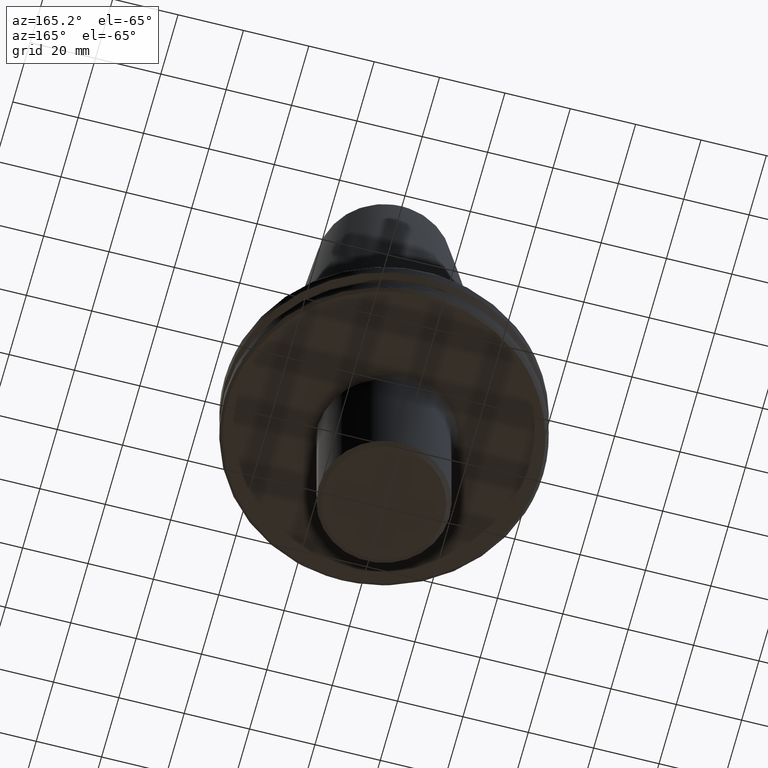
[diagram: clean part render]
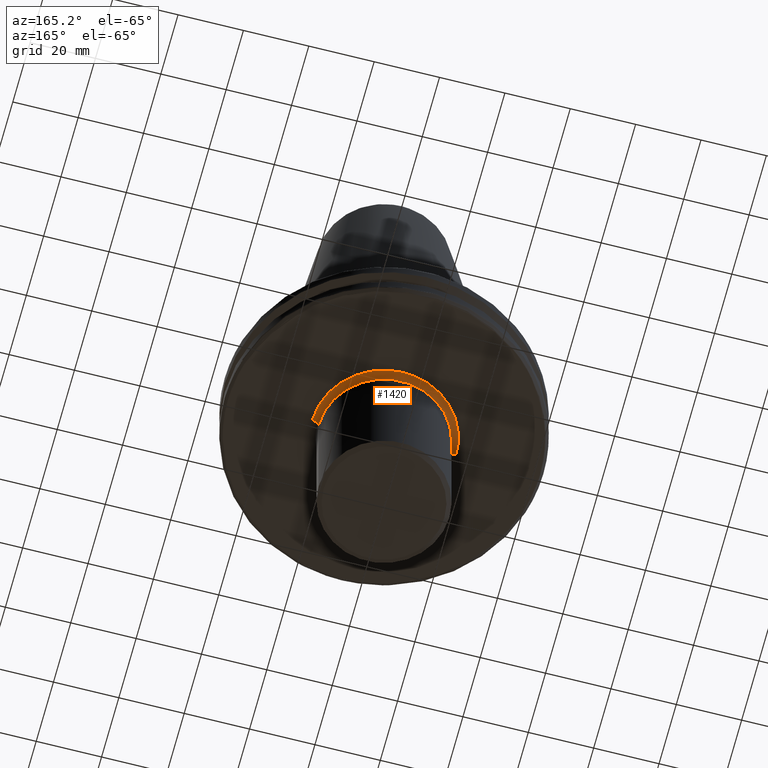
[diagram: same view with one face highlighted and labeled with its STEP entity id]
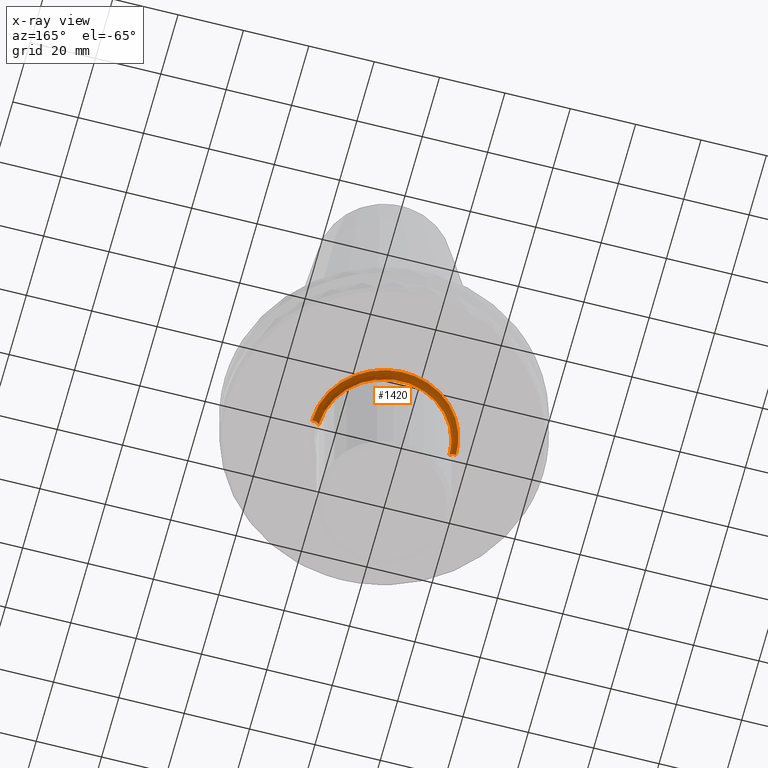
[diagram: x-ray of the same camera — body ghosted, the highlighted face saturated]
A machine part, auxiliary view. The second image highlights one B-rep face of the part: STEP entity #1420.
The next image is the same camera in x-ray: the body ghosted, the highlighted face saturated — about 0% of this face is hidden behind the body in this view.
In plain terms, the highlighted face is a freeform B-spline surface patch.
Its self-contained STEP definition (entity closure, byte-faithful):
#9 = CARTESIAN_POINT ( 'NONE',  ( -19.99999999999999600, 0.0000000000000000000, -19.92842712474619700 ) ) ;
#13 = CARTESIAN_POINT ( 'NONE',  ( 22.00000000000000000, 2.694222958124176800E-015, -19.10000000000000500 ) ) ;
#63 = CARTESIAN_POINT ( 'NONE',  ( -3.961824609639739600, 21.64034092733157200, -19.10000000000000100 ) ) ;
#77 = CARTESIAN_POINT ( 'NONE',  ( -8.789175858641266700, 20.18176426588434000, -19.10000000000000500 ) ) ;
#85 = CARTESIAN_POINT ( 'NONE',  ( -20.38625831591178900, 8.270596387113872800, -19.10000000000000500 ) ) ;
#96 = CARTESIAN_POINT ( 'NONE',  ( -21.60385400619547300, 4.156561715439580400, -19.10000000000000900 ) ) ;
#186 = CARTESIAN_POINT ( 'NONE',  ( 20.52036344144912400, 7.932009045223265000, -19.10000000000000100 ) ) ;
#196 = CARTESIAN_POINT ( 'NONE',  ( 14.17717719788480400, 16.85304434527245800, -19.10000000000000500 ) ) ;
#205 = CARTESIAN_POINT ( 'NONE',  ( 8.139535032522431400, 20.43893125800260100, -19.09999999999999800 ) ) ;
#216 = CARTESIAN_POINT ( 'NONE',  ( -1.677514054490996100, 21.95411813887724900, -19.10000000000000100 ) ) ;
#262 = CARTESIAN_POINT ( 'NONE',  ( 19.99999999999999300, 39.99999999999998600, -19.92842712474619700 ) ) ;
#309 = CARTESIAN_POINT ( 'NONE',  ( -8.054890344843698800, 20.47244127071653000, -19.10000000000000100 ) ) ;
#311 = CARTESIAN_POINT ( 'NONE',  ( 21.95408976314558900, 1.677667413967471000, -19.10000000000000900 ) ) ;
#318 = CARTESIAN_POINT ( 'NONE',  ( -14.48263358429819200, 16.63001222812161500, -19.10000000000000500 ) ) ;
#333 = CARTESIAN_POINT ( 'NONE',  ( -19.94720436764442100, 9.292882531663401800, -19.10000000000000900 ) ) ;
#349 = CARTESIAN_POINT ( 'NONE',  ( -21.62889225209343300, 4.023858802857255900, -19.10000000000000500 ) ) ;
#438 = CARTESIAN_POINT ( 'NONE',  ( 20.47244127071637400, 8.054890344843716600, -19.10000000000000100 ) ) ;
#447 = CARTESIAN_POINT ( 'NONE',  ( 12.58948349906860800, 18.04357110902726500, -19.10000000000000100 ) ) ;
#462 = CARTESIAN_POINT ( 'NONE',  ( 6.425581732685285100, 21.06203278898110300, -19.10000000000000500 ) ) ;
#473 = CARTESIAN_POINT ( 'NONE',  ( -3.423553767306822100, 21.73315916266629000, -19.10000000000000500 ) ) ;
#514 = CARTESIAN_POINT ( 'NONE',  ( -19.99999999999999600, 0.0000000000000000000, -21.10000000000000900 ) ) ;
#564 = CARTESIAN_POINT ( 'NONE',  ( -11.49024314156320200, 18.76264944326169700, -19.10000000000000500 ) ) ;
#578 = CARTESIAN_POINT ( 'NONE',  ( -13.30955040852072600, 17.58303452887182800, -19.10000000000000100 ) ) ;
#585 = CARTESIAN_POINT ( 'NONE',  ( -20.33376319355172900, 8.399625677568190300, -19.10000000000000100 ) ) ;
#592 = CARTESIAN_POINT ( 'NONE',  ( -21.87757270172153700, 2.680201566502885300, -19.10000000000000500 ) ) ;
#640 = CARTESIAN_POINT ( 'NONE',  ( 21.65908062398337800, 3.858408933056433700, -19.10000000000000500 ) ) ;
#687 = CARTESIAN_POINT ( 'NONE',  ( 19.72140032570168700, 9.800061415364796200, -19.10000000000000500 ) ) ;
#700 = CARTESIAN_POINT ( 'NONE',  ( 12.19716485783916800, 18.30951292798670600, -19.10000000000000900 ) ) ;
#711 = CARTESIAN_POINT ( 'NONE',  ( 4.615105481633576400, 21.51181872265524600, -19.10000000000000500 ) ) ;
#722 = CARTESIAN_POINT ( 'NONE',  ( -3.858390362182326300, 21.65908406010714800, -19.10000000000000900 ) ) ;
#766 = CARTESIAN_POINT ( 'NONE',  ( 19.99999999999999300, 39.99999999999998600, -21.10000000000000900 ) ) ;
#818 = CARTESIAN_POINT ( 'NONE',  ( -8.015101768288545300, 20.48804770931754900, -19.10000000000000100 ) ) ;
#828 = CARTESIAN_POINT ( 'NONE',  ( -16.09320698700696500, 15.01951766509526100, -19.10000000000000100 ) ) ;
#841 = CARTESIAN_POINT ( 'NONE',  ( -20.42099529586085900, 8.184441510769023200, -19.10000000000000500 ) ) ;
#941 = CARTESIAN_POINT ( 'NONE',  ( 21.64033992182992700, 3.961830043973872500, -19.10000000000000100 ) ) ;
#951 = CARTESIAN_POINT ( 'NONE',  ( 18.76264944326370500, 11.49024314156297400, -19.10000000000000100 ) ) ;
#961 = CARTESIAN_POINT ( 'NONE',  ( 11.41650885385843700, 18.82064215873291600, -19.10000000000000100 ) ) ;
#973 = CARTESIAN_POINT ( 'NONE',  ( 4.156561715437654800, 21.60385400619582100, -19.10000000000000900 ) ) ;
#1012 = CARTESIAN_POINT ( 'NONE',  ( 19.99999999999999600, 0.0000000000000000000, -21.10000000000000900 ) ) ;
#1013 = CARTESIAN_POINT ( 'NONE',  ( 21.99999999999998900, 43.99999999999999300, -19.10000000000000900 ) ) ;
#1051 = CARTESIAN_POINT ( 'NONE',  ( -11.72606424544367000, 18.61474831812038000, -19.10000000000000500 ) ) ;
#1063 = CARTESIAN_POINT ( 'NONE',  ( -18.04357110902726200, 12.58948349906860600, -19.10000000000000100 ) ) ;
#1077 = CARTESIAN_POINT ( 'NONE',  ( -21.51181872265395300, 4.615105481640553900, -19.10000000000000500 ) ) ;
#1079 = CARTESIAN_POINT ( 'NONE',  ( -19.99999999999999600, 2.449293598294706500E-015, -21.10000000000000900 ) ) ;
#1130 = EDGE_CURVE ( 'NONE', #2470, #1321, #1557, .T. ) ;
#1161 = CARTESIAN_POINT ( 'NONE',  ( 21.50293857562375200, 4.704593584878914200, -19.10000000000000100 ) ) ;
#1168 = CARTESIAN_POINT ( 'NONE',  ( 18.51510597627777000, 11.88274179770358300, -19.10000000000000500 ) ) ;
#1169 = VERTEX_POINT ( 'NONE', #1012 ) ;
#1170 = CARTESIAN_POINT ( 'NONE',  ( -22.00000000000000000, 0.0000000000000000000, -21.10000000000000900 ) ) ;
#1173 = DIRECTION ( 'NONE',  ( 1.224646799147353200E-016, -1.000000000000000000, 0.0000000000000000000 ) ) ;
#1178 = CARTESIAN_POINT ( 'NONE',  ( 9.292882531653210900, 19.94720436765108900, -19.10000000000000500 ) ) ;
#1184 = CARTESIAN_POINT ( 'NONE',  ( 4.047036669475102300, 21.62456841593488100, -19.10000000000000900 ) ) ;
#1216 = CARTESIAN_POINT ( 'NONE',  ( -22.00000000000000000, 43.99999999999999300, -19.10000000000000900 ) ) ;
#1224 = CARTESIAN_POINT ( 'NONE',  ( -20.82842712474619200, 0.0000000000000000000, -19.10000000000000500 ) ) ;
#1247 = DIRECTION ( 'NONE',  ( 0.0000000000000000000, 1.000000000000000000, 0.0000000000000000000 ) ) ;
#1289 =( BOUNDED_SURFACE ( )  B_SPLINE_SURFACE ( 3, 3, ( 
 ( #1464, #1216, #1013, #2641 ),
 ( #1224, #2862, #2164, #1477 ),
 ( #9, #1716, #262, #1958 ),
 ( #514, #2196, #766, #2425 ) ),
 .UNSPECIFIED., .F., .F., .F. ) 
 B_SPLINE_SURFACE_WITH_KNOTS ( ( 4, 4 ),
 ( 4, 4 ),
 ( 0.0000000000000000000, 1.000000000000000000 ),
 ( 0.0000000000000000000, 1.000000000000000000 ),
 .UNSPECIFIED. ) 
 GEOMETRIC_REPRESENTATION_ITEM ( )  RATIONAL_B_SPLINE_SURFACE ( (
 ( 1.000000000000000000, 0.3333333333333334300, 0.3333333333333334300, 1.000000000000000000),
 ( 0.8047378541243649400, 0.2682459513747884100, 0.2682459513747884100, 0.8047378541243649400),
 ( 0.8047378541243649400, 0.2682459513747884100, 0.2682459513747884100, 0.8047378541243649400),
 ( 1.000000000000000000, 0.3333333333333334300, 0.3333333333333334300, 1.000000000000000000) ) ) 
 REPRESENTATION_ITEM ( '' )  SURFACE ( )  );
#1293 = CARTESIAN_POINT ( 'NONE',  ( -6.928576152051860500, 20.88595905967920900, -19.10000000000000900 ) ) ;
#1301 = CARTESIAN_POINT ( 'NONE',  ( -18.82064215872782900, 11.41650885386620800, -19.10000000000000900 ) ) ;
#1310 = CARTESIAN_POINT ( 'NONE',  ( -21.37640470911931300, 5.222810687770680400, -19.10000000000000500 ) ) ;
#1321 = VERTEX_POINT ( 'NONE', #1079 ) ;
#1344 = CARTESIAN_POINT ( 'NONE',  ( -22.00000000000000000, 0.0000000000000000000, -19.10000000000000500 ) ) ;
#1358 = DIRECTION ( 'NONE',  ( 0.0000000000000000000, 0.0000000000000000000, -1.000000000000000000 ) ) ;
#1387 = CARTESIAN_POINT ( 'NONE',  ( 22.00000000000000700, 0.6727251541908998400, -19.10000000000000900 ) ) ;
#1400 = CARTESIAN_POINT ( 'NONE',  ( 20.88595905968196600, 6.928576152036943500, -19.10000000000000500 ) ) ;
#1415 = CARTESIAN_POINT ( 'NONE',  ( 17.58303452885754600, 13.30955040853501400, -19.10000000000000100 ) ) ;
#1420 = ADVANCED_FACE ( 'NONE', ( #2300 ), #1289, .F. ) ;
#1426 = CARTESIAN_POINT ( 'NONE',  ( 8.399625677565010700, 20.33376319355381800, -19.10000000000000100 ) ) ;
#1436 = CARTESIAN_POINT ( 'NONE',  ( 2.680376879358621300, 21.87754025529204000, -19.10000000000000500 ) ) ;
#1453 = CARTESIAN_POINT ( 'NONE',  ( 21.68460623744281100, 3.713555144554614900, -19.10000000000000900 ) ) ;
#1464 = CARTESIAN_POINT ( 'NONE',  ( -22.00000000000000000, 0.0000000000000000000, -19.10000000000000500 ) ) ;
#1477 = CARTESIAN_POINT ( 'NONE',  ( 20.82842712474619200, 2.550746660959432800E-015, -19.10000000000000500 ) ) ;
#1492 = AXIS2_PLACEMENT_3D ( 'NONE', #2811, #1173, #3005 ) ;
#1525 = CARTESIAN_POINT ( 'NONE',  ( -4.704593584890271400, 21.50293857562164500, -19.10000000000000500 ) ) ;
#1533 = CARTESIAN_POINT ( 'NONE',  ( -11.95918108484514900, 18.46583041668149100, -19.10000000000000500 ) ) ;
#1549 = CARTESIAN_POINT ( 'NONE',  ( -18.36305863282063900, 12.11637778954899900, -19.10000000000000500 ) ) ;
#1557 = CIRCLE ( 'NONE', #2243, 2.000000000000001800 ) ;
#1562 = CARTESIAN_POINT ( 'NONE',  ( -21.57408274278728700, 4.309672957659278000, -19.10000000000000900 ) ) ;
#1648 = CARTESIAN_POINT ( 'NONE',  ( 20.56844768583306400, 7.807259079637626400, -19.10000000000000100 ) ) ;
#1656 = CARTESIAN_POINT ( 'NONE',  ( 15.01951766509526300, 16.09320698700697600, -19.10000000000000500 ) ) ;
#1667 = CARTESIAN_POINT ( 'NONE',  ( 8.184441510768067500, 20.42099529586148100, -19.10000000000000500 ) ) ;
#1680 = CARTESIAN_POINT ( 'NONE',  ( -0.6726375202043315400, 22.00001621470382000, -19.09999999999999800 ) ) ;
#1685 = EDGE_CURVE ( 'NONE', #1856, #1169, #2917, .T. ) ;
#1697 = B_SPLINE_CURVE_WITH_KNOTS ( 'NONE', 3,
 ( #2635, #1387, #311, #2359, #1939, #1453, #640, #2354, #941, #2572, #1161, #2803, #1400, #2985, #1648, #186, #1892, #438, #2129, #687, #2360, #951, #2585, #1168, #2809, #1415, #2997, #1656, #196, #1905, #447, #2138, #700, #2372, #961, #2589, #1178, #2814, #1426, #3008, #1667, #205, #1911, #462, #2147, #711, #2384, #973, #2598, #1184, #2824, #1436, #3015, #1680, #216, #1916, #473, #2161, #722, #2684, #63, #1770, #1525, #1783, #1293, #2248, #2017, #2474, #818, #309, #77, #2694, #2009, #564, #1051, #2913, #1533, #578, #318, #828, #2484, #2258, #1063, #2702, #2923, #1549, #1301, #1795, #333, #2027, #585, #85, #841, #2492, #2271, #2716, #1310, #1077, #1562, #96, #2929, #1805, #349, #592, #2282, #2040 ),
 .UNSPECIFIED., .F., .F.,
 ( 4, 1, 1, 1, 1, 1, 2, 2, 1, 1, 1, 1, 2, 2, 1, 1, 1, 2, 2, 2, 1, 1, 1, 2, 2, 1, 1, 1, 1, 2, 2, 1, 1, 1, 1, 1, 2, 2, 2, 1, 1, 1, 1, 1, 2, 2, 1, 1, 1, 1, 2, 2, 1, 1, 1, 2, 2, 2, 1, 1, 1, 2, 2, 1, 1, 1, 1, 2, 2, 1, 1, 1, 1, 1, 2, 2, 4 ),
 ( 0.0000000000000000000, 0.03124999999999868200, 0.04687499999999802200, 0.05468749999999769600, 0.05859374999999752300, 0.06054687499999744000, 0.06152343749999741900, 0.06249999999999739100, 0.09374999999999754400, 0.1093749999999976300, 0.1171874999999977200, 0.1210937499999977500, 0.1230468749999977500, 0.1249999999999977500, 0.1562499999999973600, 0.1718749999999971700, 0.1796874999999970600, 0.1835937499999970000, 0.1874999999999969500, 0.2499999999999963400, 0.2812499999999960000, 0.2968749999999958900, 0.3046874999999958400, 0.3085937499999958400, 0.3124999999999958400, 0.3437499999999957800, 0.3593749999999957300, 0.3671874999999956700, 0.3710937499999956100, 0.3730468749999955000, 0.3749999999999954500, 0.4062499999999952800, 0.4218749999999952300, 0.4296874999999951700, 0.4335937499999951200, 0.4355468749999951200, 0.4365234374999950600, 0.4374999999999950000, 0.4999999999999952300, 0.5312499999999953400, 0.5468749999999954500, 0.5546874999999955600, 0.5585937499999956700, 0.5605468749999956700, 0.5615234374999957800, 0.5624999999999957800, 0.5937499999999958900, 0.6093749999999958900, 0.6171874999999958900, 0.6210937499999960000, 0.6230468749999960000, 0.6249999999999960000, 0.6562499999999961100, 0.6718749999999961100, 0.6796874999999960000, 0.6835937499999958900, 0.6874999999999958900, 0.7499999999999948900, 0.7812499999999943400, 0.7968749999999941200, 0.8046874999999940000, 0.8085937499999940000, 0.8124999999999938900, 0.8437499999999938900, 0.8593749999999938900, 0.8671874999999938900, 0.8710937499999940000, 0.8730468749999940000, 0.8749999999999940000, 0.9062499999999954500, 0.9218749999999961100, 0.9296874999999964500, 0.9335937499999965600, 0.9355468749999965600, 0.9365234374999966700, 0.9374999999999967800, 1.000000000000000000 ),
 .UNSPECIFIED. ) ;
#1716 = CARTESIAN_POINT ( 'NONE',  ( -19.99999999999999300, 39.99999999999998600, -19.92842712474619700 ) ) ;
#1770 = CARTESIAN_POINT ( 'NONE',  ( -3.981268202072713300, 21.63677371546285100, -19.10000000000000100 ) ) ;
#1783 = CARTESIAN_POINT ( 'NONE',  ( -5.742510465919350400, 21.25843199324052100, -19.10000000000000500 ) ) ;
#1795 = CARTESIAN_POINT ( 'NONE',  ( -19.38087801473635000, 10.45736319289701100, -19.10000000000000500 ) ) ;
#1805 = CARTESIAN_POINT ( 'NONE',  ( -21.62456841593477100, 4.047036669475663700, -19.10000000000000900 ) ) ;
#1830 = EDGE_LOOP ( 'NONE', ( #2375, #2577, #1855, #2366 ) ) ;
#1855 = ORIENTED_EDGE ( 'NONE', *, *, #2797, .F. ) ;
#1856 = VERTEX_POINT ( 'NONE', #13 ) ;
#1892 = CARTESIAN_POINT ( 'NONE',  ( 20.48804770931781500, 8.015101768287145500, -19.10000000000000900 ) ) ;
#1897 = CIRCLE ( 'NONE', #2042, 19.99999999999999600 ) ;
#1905 = CARTESIAN_POINT ( 'NONE',  ( 13.12953357783571600, 17.65998491284326400, -19.10000000000000900 ) ) ;
#1911 = CARTESIAN_POINT ( 'NONE',  ( 7.434860855781690400, 20.71792446930702900, -19.10000000000000500 ) ) ;
#1916 = CARTESIAN_POINT ( 'NONE',  ( -2.842730455624003800, 21.82020618745228200, -19.10000000000000900 ) ) ;
#1939 = CARTESIAN_POINT ( 'NONE',  ( 21.73314674828368400, 3.423620862077785700, -19.10000000000000900 ) ) ;
#1958 = CARTESIAN_POINT ( 'NONE',  ( 19.99999999999999600, 2.449293598294706500E-015, -19.92842712474619700 ) ) ;
#2009 = CARTESIAN_POINT ( 'NONE',  ( -10.93436047074192400, 19.09681535522662400, -19.10000000000000500 ) ) ;
#2017 = CARTESIAN_POINT ( 'NONE',  ( -7.807259079642285800, 20.56844768583219000, -19.10000000000000100 ) ) ;
#2027 = CARTESIAN_POINT ( 'NONE',  ( -20.20854700765631800, 8.699272853520874100, -19.10000000000000500 ) ) ;
#2040 = CARTESIAN_POINT ( 'NONE',  ( -22.00000000000000000, 0.0000000000000000000, -19.10000000000000500 ) ) ;
#2042 = AXIS2_PLACEMENT_3D ( 'NONE', #2763, #1358, #2963 ) ;
#2129 = CARTESIAN_POINT ( 'NONE',  ( 20.18176426588695800, 8.789175858640971800, -19.09999999999999800 ) ) ;
#2138 = CARTESIAN_POINT ( 'NONE',  ( 12.35455597915216000, 18.20370431719154100, -19.10000000000000500 ) ) ;
#2147 = CARTESIAN_POINT ( 'NONE',  ( 5.222810687758719300, 21.37640470912153400, -19.10000000000000900 ) ) ;
#2161 = CARTESIAN_POINT ( 'NONE',  ( -3.713519200927310100, 21.68461288800491000, -19.10000000000000500 ) ) ;
#2164 = CARTESIAN_POINT ( 'NONE',  ( 20.82842712474618100, 41.65685424949236200, -19.10000000000000100 ) ) ;
#2196 = CARTESIAN_POINT ( 'NONE',  ( -19.99999999999999600, 39.99999999999998600, -21.10000000000000900 ) ) ;
#2243 = AXIS2_PLACEMENT_3D ( 'NONE', #1170, #1247, #2740 ) ;
#2248 = CARTESIAN_POINT ( 'NONE',  ( -7.515399659684429200, 20.67791877936938900, -19.10000000000000500 ) ) ;
#2258 = CARTESIAN_POINT ( 'NONE',  ( -17.65998491284326000, 13.12953357783571600, -19.10000000000000900 ) ) ;
#2271 = CARTESIAN_POINT ( 'NONE',  ( -20.71792446930534100, 7.434860855790804000, -19.10000000000000500 ) ) ;
#2282 = CARTESIAN_POINT ( 'NONE',  ( -21.99999999999998900, 1.345805848813837400, -19.09999999999999800 ) ) ;
#2300 = FACE_OUTER_BOUND ( 'NONE', #1830, .T. ) ;
#2354 = CARTESIAN_POINT ( 'NONE',  ( 21.64787207006384800, 3.920464838256516600, -19.10000000000000100 ) ) ;
#2359 = CARTESIAN_POINT ( 'NONE',  ( 21.82018490565352300, 2.842845475231365400, -19.10000000000000500 ) ) ;
#2360 = CARTESIAN_POINT ( 'NONE',  ( 19.09681535523005600, 10.93436047074153300, -19.10000000000000500 ) ) ;
#2366 = ORIENTED_EDGE ( 'NONE', *, *, #1130, .F. ) ;
#2372 = CARTESIAN_POINT ( 'NONE',  ( 12.11637778954997600, 18.36305863282000700, -19.10000000000000500 ) ) ;
#2375 = ORIENTED_EDGE ( 'NONE', *, *, #3000, .F. ) ;
#2384 = CARTESIAN_POINT ( 'NONE',  ( 4.309672957655537000, 21.57408274278797900, -19.10000000000000500 ) ) ;
#2425 = CARTESIAN_POINT ( 'NONE',  ( 19.99999999999999600, 2.449293598294706100E-015, -21.10000000000000900 ) ) ;
#2470 = VERTEX_POINT ( 'NONE', #1344 ) ;
#2474 = CARTESIAN_POINT ( 'NONE',  ( -7.932009045225997000, 20.52036344144860900, -19.10000000000000500 ) ) ;
#2484 = CARTESIAN_POINT ( 'NONE',  ( -16.85304434527245100, 14.17717719788481100, -19.10000000000000900 ) ) ;
#2492 = CARTESIAN_POINT ( 'NONE',  ( -20.43893125800271800, 8.139535032521861200, -19.10000000000000500 ) ) ;
#2572 = CARTESIAN_POINT ( 'NONE',  ( 21.63677371546278700, 3.981268202073073000, -19.10000000000000500 ) ) ;
#2577 = ORIENTED_EDGE ( 'NONE', *, *, #1685, .T. ) ;
#2585 = CARTESIAN_POINT ( 'NONE',  ( 18.61474831812159200, 11.72606424544354000, -19.10000000000000900 ) ) ;
#2589 = CARTESIAN_POINT ( 'NONE',  ( 10.45736319288341500, 19.38087801474524600, -19.10000000000000900 ) ) ;
#2598 = CARTESIAN_POINT ( 'NONE',  ( 4.090857973009519800, 21.61632153051520800, -19.10000000000000900 ) ) ;
#2635 = CARTESIAN_POINT ( 'NONE',  ( 22.00000000000000000, 2.694222958124176800E-015, -19.10000000000000500 ) ) ;
#2641 = CARTESIAN_POINT ( 'NONE',  ( 22.00000000000000000, 2.694222958124176800E-015, -19.10000000000000500 ) ) ;
#2684 = CARTESIAN_POINT ( 'NONE',  ( -3.920454097958352000, 21.64787405731515300, -19.10000000000000900 ) ) ;
#2694 = CARTESIAN_POINT ( 'NONE',  ( -9.800061415365311400, 19.72140032569711100, -19.10000000000000500 ) ) ;
#2702 = CARTESIAN_POINT ( 'NONE',  ( -18.20370431719152600, 12.35455597915216300, -19.10000000000000500 ) ) ;
#2716 = CARTESIAN_POINT ( 'NONE',  ( -21.06203278897815400, 6.425581732701240300, -19.10000000000000900 ) ) ;
#2740 = DIRECTION ( 'NONE',  ( -1.000000000000000000, 0.0000000000000000000, 0.0000000000000000000 ) ) ;
#2763 = CARTESIAN_POINT ( 'NONE',  ( 0.0000000000000000000, 0.0000000000000000000, -21.10000000000000900 ) ) ;
#2797 = EDGE_CURVE ( 'NONE', #1321, #1169, #1897, .T. ) ;
#2803 = CARTESIAN_POINT ( 'NONE',  ( 21.25843199324419800, 5.742510465899462300, -19.10000000000000900 ) ) ;
#2809 = CARTESIAN_POINT ( 'NONE',  ( 18.46583041668238700, 11.95918108484426400, -19.10000000000000500 ) ) ;
#2811 = CARTESIAN_POINT ( 'NONE',  ( 22.00000000000000000, 2.694222958124176800E-015, -21.10000000000000900 ) ) ;
#2814 = CARTESIAN_POINT ( 'NONE',  ( 8.699272853514935700, 20.20854700766020400, -19.10000000000000500 ) ) ;
#2824 = CARTESIAN_POINT ( 'NONE',  ( 4.023856063593889600, 21.62889275906890100, -19.10000000000000900 ) ) ;
#2862 = CARTESIAN_POINT ( 'NONE',  ( -20.82842712474618800, 41.65685424949236200, -19.10000000000000100 ) ) ;
#2913 = CARTESIAN_POINT ( 'NONE',  ( -11.88274179770365000, 18.51510597627713000, -19.10000000000000100 ) ) ;
#2917 = CIRCLE ( 'NONE', #1492, 2.000000000000001800 ) ;
#2923 = CARTESIAN_POINT ( 'NONE',  ( -18.30951292798669200, 12.19716485783916800, -19.10000000000000500 ) ) ;
#2929 = CARTESIAN_POINT ( 'NONE',  ( -21.61632153051500900, 4.090857973010632700, -19.10000000000000900 ) ) ;
#2963 = DIRECTION ( 'NONE',  ( -1.000000000000000000, 0.0000000000000000000, 0.0000000000000000000 ) ) ;
#2985 = CARTESIAN_POINT ( 'NONE',  ( 20.67791877937100200, 7.515399659675722400, -19.10000000000000500 ) ) ;
#2997 = CARTESIAN_POINT ( 'NONE',  ( 16.63001222812161800, 14.48263358429818500, -19.10000000000000500 ) ) ;
#3000 = EDGE_CURVE ( 'NONE', #1856, #2470, #1697, .T. ) ;
#3005 = DIRECTION ( 'NONE',  ( 1.000000000000000000, 1.224646799147351500E-016, 0.0000000000000000000 ) ) ;
#3008 = CARTESIAN_POINT ( 'NONE',  ( 8.270596387112007600, 20.38625831591301800, -19.10000000000000900 ) ) ;
#3015 = CARTESIAN_POINT ( 'NONE',  ( 1.345275040408689900, 21.99996757059236400, -19.10000000000000500 ) ) ;